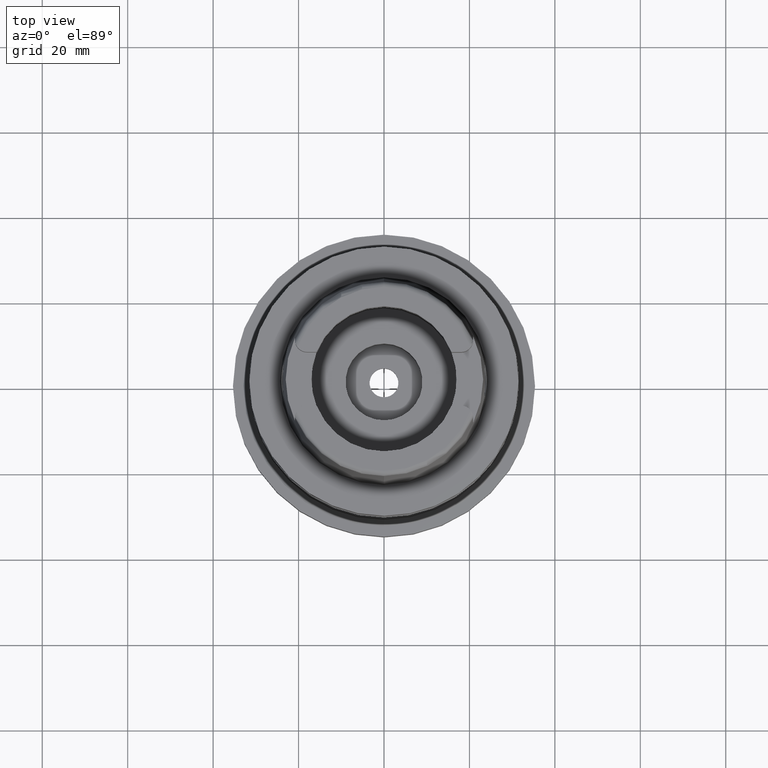
[diagram: clean part render]
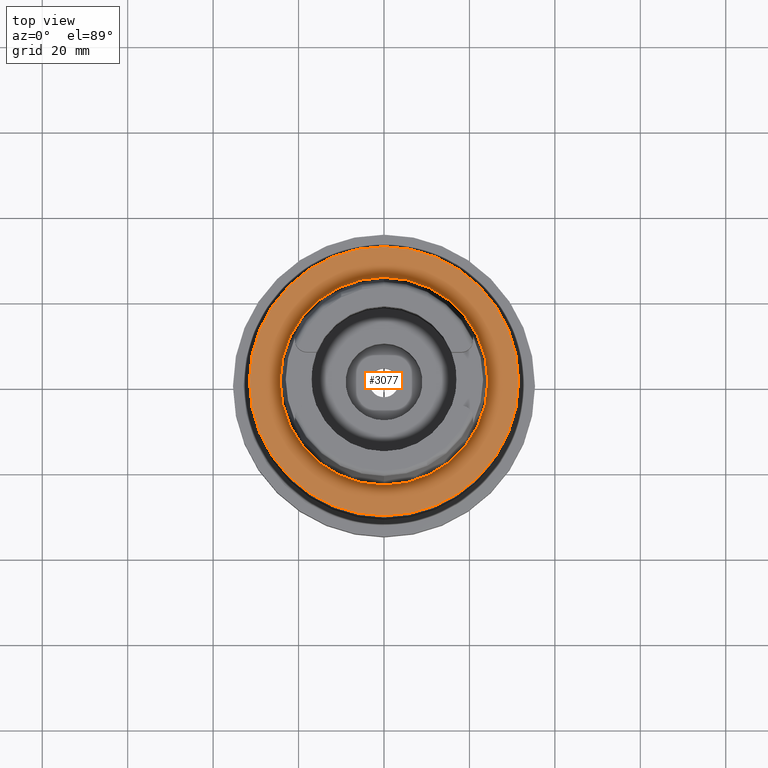
[diagram: same view with one face highlighted and labeled with its STEP entity id]
A machine part, top view. The second image highlights one B-rep face of the part: STEP entity #3077.
In plain terms, the highlighted planar face has unit normal (0, 0, 1).
Its self-contained STEP definition (entity closure, byte-faithful):
#618=CARTESIAN_POINT('',(0.E0,0.E0,-1.563194018672E-13));
#619=DIRECTION('',(0.E0,0.E0,-1.E0));
#620=DIRECTION('',(0.E0,-1.E0,0.E0));
#621=AXIS2_PLACEMENT_3D('',#618,#619,#620);
#626=CARTESIAN_POINT('',(0.E0,0.E0,-1.563194018672E-13));
#627=DIRECTION('',(0.E0,0.E0,-1.E0));
#628=DIRECTION('',(0.E0,1.E0,0.E0));
#629=AXIS2_PLACEMENT_3D('',#626,#627,#628);
#634=CARTESIAN_POINT('',(0.E0,0.E0,-1.705302565824E-12));
#635=DIRECTION('',(0.E0,0.E0,1.E0));
#636=DIRECTION('',(0.E0,-1.E0,0.E0));
#637=AXIS2_PLACEMENT_3D('',#634,#635,#636);
#642=CARTESIAN_POINT('',(0.E0,0.E0,-1.705302565824E-12));
#643=DIRECTION('',(0.E0,0.E0,1.E0));
#644=DIRECTION('',(0.E0,1.E0,0.E0));
#645=AXIS2_PLACEMENT_3D('',#642,#643,#644);
#2409=CARTESIAN_POINT('',(0.E0,-2.431503482329E1,-9.485745522397E-13));
#2410=VERTEX_POINT('',#2409);
#2411=CARTESIAN_POINT('',(0.E0,2.431503482329E1,-1.705302565824E-12));
#2412=VERTEX_POINT('',#2411);
#2691=CARTESIAN_POINT('',(0.E0,3.15E1,-6.631732200428E-14));
#2692=VERTEX_POINT('',#2691);
#2693=CARTESIAN_POINT('',(0.E0,-3.15E1,-1.563194018672E-13));
#2694=VERTEX_POINT('',#2693);
#3062=CARTESIAN_POINT('',(0.E0,0.E0,0.E0));
#3063=DIRECTION('',(0.E0,0.E0,1.E0));
#3064=DIRECTION('',(0.E0,1.E0,0.E0));
#3065=AXIS2_PLACEMENT_3D('',#3062,#3063,#3064);
#3066=PLANE('',#3065);
#3068=ORIENTED_EDGE('',*,*,#3067,.T.);
#3070=ORIENTED_EDGE('',*,*,#3069,.T.);
#3071=EDGE_LOOP('',(#3068,#3070));
#3072=FACE_OUTER_BOUND('',#3071,.F.);
#3073=ORIENTED_EDGE('',*,*,#3020,.T.);
#3074=ORIENTED_EDGE('',*,*,#2813,.T.);
#3075=EDGE_LOOP('',(#3073,#3074));
#3076=FACE_BOUND('',#3075,.F.);
#622=CIRCLE('',#621,3.15E1);
#630=CIRCLE('',#629,3.15E1);
#638=CIRCLE('',#637,2.431503482329E1);
#646=CIRCLE('',#645,2.431503482329E1);
#2813=EDGE_CURVE('',#2412,#2410,#646,.T.);
#3020=EDGE_CURVE('',#2410,#2412,#638,.T.);
#3067=EDGE_CURVE('',#2694,#2692,#622,.T.);
#3069=EDGE_CURVE('',#2692,#2694,#630,.T.);
#3077=ADVANCED_FACE('',(#3072,#3076),#3066,.T.);